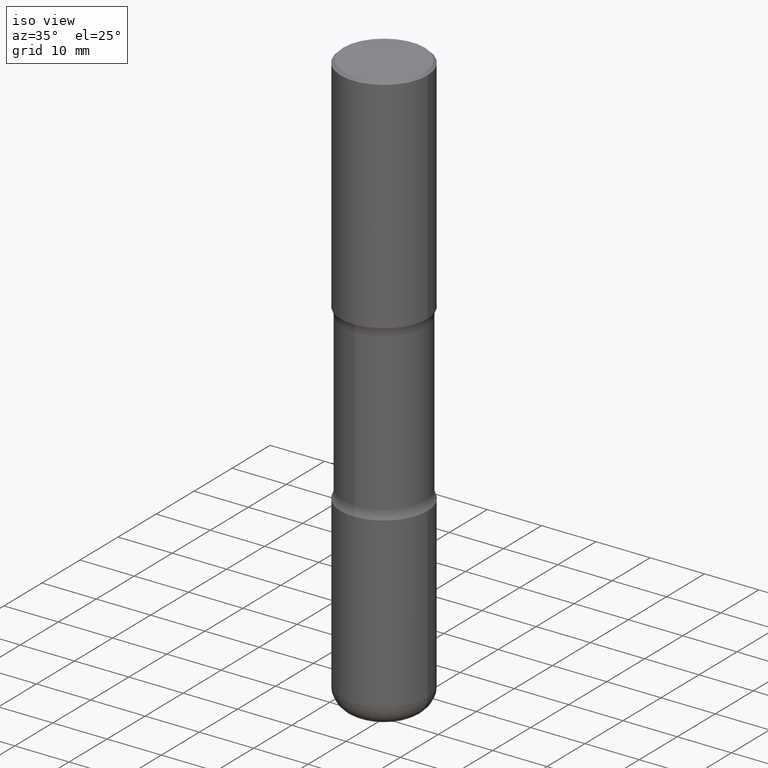
[diagram: clean part render]
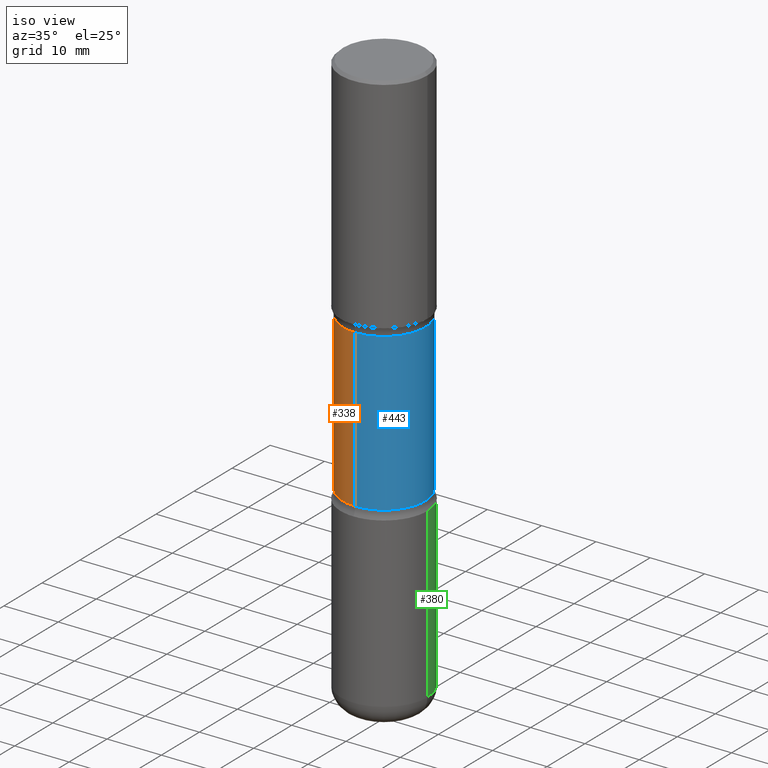
[diagram: same view with three faces highlighted in distinct colors, each labeled with its STEP entity id]
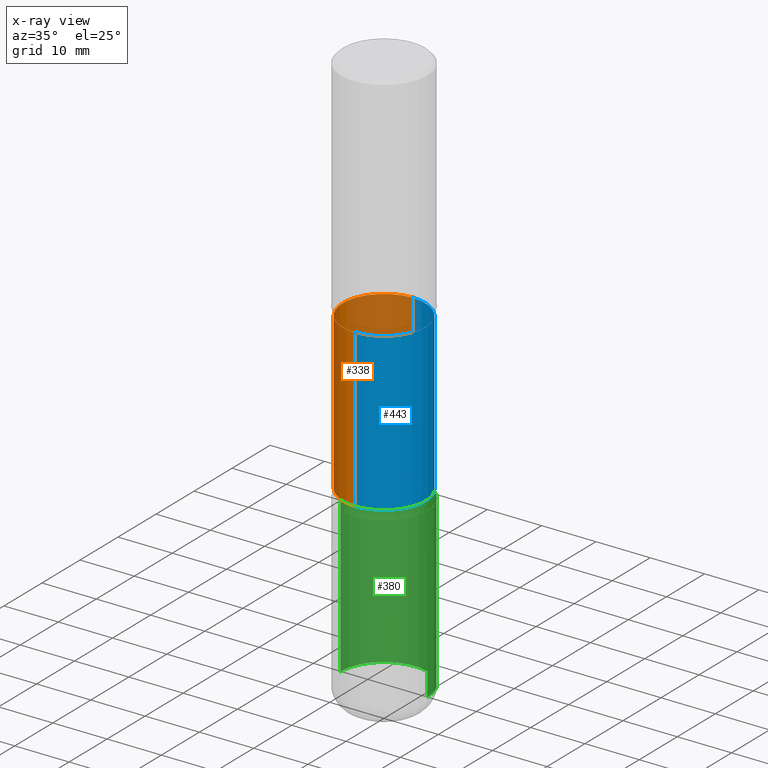
[diagram: x-ray of the same camera — body ghosted, the three highlighted faces saturated]
A machine part, iso view with three faces highlighted in distinct colors.
The next image is the same camera in x-ray (body ghosted, the three faces saturated) — at least one of them is partly hidden behind the body in this view.
Their STEP definitions:

[orange] entity #338 — the highlighted cylindrical surface (partial cylindrical patch) has radius 7.5946 mm, axis along (0, -0, -1).
#24 = AXIS2_PLACEMENT_3D ( 'NONE', #92, #141, #363 ) ;
#28 = DIRECTION ( 'NONE',  ( 6.982962677686266711E-15, 1.000000000000000000, -3.654646145370251312E-15 ) ) ;
#43 = CYLINDRICAL_SURFACE ( 'NONE', #24, 0.2989999999999999880 ) ;
#55 = EDGE_CURVE ( 'NONE', #318, #377, #481, .T. ) ;
#68 = CARTESIAN_POINT ( 'NONE',  ( 2.087905840628298129E-15, 0.2989999999999852220, -4.252000000000001556 ) ) ;
#75 = CARTESIAN_POINT ( 'NONE',  ( 2.087905840628262630E-15, 0.2989999999999902180, -2.812900920628869095 ) ) ;
#85 = EDGE_CURVE ( 'NONE', #318, #387, #148, .T. ) ;
#92 = CARTESIAN_POINT ( 'NONE',  ( 1.044582434535137653E-28, -1.477748245291944959E-14, -4.252000000000000668 ) ) ;
#94 = DIRECTION ( 'NONE',  ( 2.480077646135916176E-29, -3.441919510220789364E-15, -1.000000000000000000 ) ) ;
#128 = AXIS2_PLACEMENT_3D ( 'NONE', #359, #518, #28 ) ;
#141 = DIRECTION ( 'NONE',  ( 2.480077646135916176E-29, -3.441919510220789364E-15, -1.000000000000000000 ) ) ;
#148 = LINE ( 'NONE', #156, #392 ) ;
#156 = CARTESIAN_POINT ( 'NONE',  ( -2.051288901333583214E-15, -0.2990000000000148095, -4.251999999999999780 ) ) ;
#250 = AXIS2_PLACEMENT_3D ( 'NONE', #394, #94, #479 ) ;
#262 = CARTESIAN_POINT ( 'NONE',  ( -2.106001372865877291E-15, -0.2990000000000058722, -1.675299079371133315 ) ) ;
#279 = VERTEX_POINT ( 'NONE', #75 ) ;
#289 = LINE ( 'NONE', #68, #514 ) ;
#296 = ORIENTED_EDGE ( 'NONE', *, *, #85, .F. ) ;
#302 = ORIENTED_EDGE ( 'NONE', *, *, #371, .F. ) ;
#318 = VERTEX_POINT ( 'NONE', #262 ) ;
#333 = ORIENTED_EDGE ( 'NONE', *, *, #540, .T. ) ;
#338 = ADVANCED_FACE ( 'NONE', ( #433 ), #43, .T. ) ;
#344 = CARTESIAN_POINT ( 'NONE',  ( -2.106001372865846525E-15, -0.2990000000000098690, -2.812900920628866874 ) ) ;
#359 = CARTESIAN_POINT ( 'NONE',  ( 6.876746888028252201E-29, -9.824219254491173135E-15, -2.812900920628867762 ) ) ;
#363 = DIRECTION ( 'NONE',  ( 6.982962677686266711E-15, 1.000000000000000000, -3.654646145370252101E-15 ) ) ;
#364 = EDGE_LOOP ( 'NONE', ( #296, #375, #333, #302 ) ) ;
#371 = EDGE_CURVE ( 'NONE', #387, #279, #416, .T. ) ;
#375 = ORIENTED_EDGE ( 'NONE', *, *, #55, .T. ) ;
#377 = VERTEX_POINT ( 'NONE', #548 ) ;
#387 = VERTEX_POINT ( 'NONE', #344 ) ;
#392 = VECTOR ( 'NONE', #449, 39.37007874015748143 ) ;
#394 = CARTESIAN_POINT ( 'NONE',  ( 4.055405991321890096E-29, -5.908685282203086004E-15, -1.675299079371134425 ) ) ;
#416 = CIRCLE ( 'NONE', #128, 0.2990000000000000435 ) ;
#433 = FACE_OUTER_BOUND ( 'NONE', #364, .T. ) ;
#449 = DIRECTION ( 'NONE',  ( 2.480077646135916176E-29, -3.441919510220789364E-15, -1.000000000000000000 ) ) ;
#479 = DIRECTION ( 'NONE',  ( 6.982962677686266711E-15, 1.000000000000000000, -3.654646145370252890E-15 ) ) ;
#481 = CIRCLE ( 'NONE', #250, 0.2989999999999999325 ) ;
#514 = VECTOR ( 'NONE', #534, 39.37007874015748143 ) ;
#518 = DIRECTION ( 'NONE',  ( 2.480077646135916176E-29, -3.441919510220789364E-15, -1.000000000000000000 ) ) ;
#534 = DIRECTION ( 'NONE',  ( 2.480077646135916176E-29, -3.441919510220789364E-15, -1.000000000000000000 ) ) ;
#540 = EDGE_CURVE ( 'NONE', #377, #279, #289, .T. ) ;
#548 = CARTESIAN_POINT ( 'NONE',  ( 2.087905840628233836E-15, 0.2989999999999940483, -1.675299079371135536 ) ) ;

[blue] entity #443 — the highlighted cylindrical surface (partial cylindrical patch) has radius 7.5946 mm, axis along (0, -0, -1).
#8 = ORIENTED_EDGE ( 'NONE', *, *, #85, .T. ) ;
#13 = CIRCLE ( 'NONE', #350, 0.2990000000000000435 ) ;
#41 = DIRECTION ( 'NONE',  ( 6.982962677686266711E-15, 1.000000000000000000, -3.654646145370252101E-15 ) ) ;
#68 = CARTESIAN_POINT ( 'NONE',  ( 2.087905840628298129E-15, 0.2989999999999852220, -4.252000000000001556 ) ) ;
#75 = CARTESIAN_POINT ( 'NONE',  ( 2.087905840628262630E-15, 0.2989999999999902180, -2.812900920628869095 ) ) ;
#85 = EDGE_CURVE ( 'NONE', #318, #387, #148, .T. ) ;
#91 = CYLINDRICAL_SURFACE ( 'NONE', #470, 0.2989999999999999880 ) ;
#93 = ORIENTED_EDGE ( 'NONE', *, *, #347, .F. ) ;
#126 = ORIENTED_EDGE ( 'NONE', *, *, #268, .T. ) ;
#132 = FACE_OUTER_BOUND ( 'NONE', #330, .T. ) ;
#148 = LINE ( 'NONE', #156, #392 ) ;
#156 = CARTESIAN_POINT ( 'NONE',  ( -2.051288901333583214E-15, -0.2990000000000148095, -4.251999999999999780 ) ) ;
#171 = CARTESIAN_POINT ( 'NONE',  ( 4.055405991321890096E-29, -5.908685282203086004E-15, -1.675299079371134425 ) ) ;
#184 = DIRECTION ( 'NONE',  ( 2.480077646135916176E-29, -3.441919510220789364E-15, -1.000000000000000000 ) ) ;
#262 = CARTESIAN_POINT ( 'NONE',  ( -2.106001372865877291E-15, -0.2990000000000058722, -1.675299079371133315 ) ) ;
#268 = EDGE_CURVE ( 'NONE', #377, #318, #445, .T. ) ;
#269 = CARTESIAN_POINT ( 'NONE',  ( 1.044582434535137653E-28, -1.477748245291944959E-14, -4.252000000000000668 ) ) ;
#279 = VERTEX_POINT ( 'NONE', #75 ) ;
#289 = LINE ( 'NONE', #68, #514 ) ;
#318 = VERTEX_POINT ( 'NONE', #262 ) ;
#330 = EDGE_LOOP ( 'NONE', ( #126, #8, #93, #430 ) ) ;
#344 = CARTESIAN_POINT ( 'NONE',  ( -2.106001372865846525E-15, -0.2990000000000098690, -2.812900920628866874 ) ) ;
#347 = EDGE_CURVE ( 'NONE', #279, #387, #13, .T. ) ;
#350 = AXIS2_PLACEMENT_3D ( 'NONE', #437, #184, #482 ) ;
#377 = VERTEX_POINT ( 'NONE', #548 ) ;
#387 = VERTEX_POINT ( 'NONE', #344 ) ;
#392 = VECTOR ( 'NONE', #449, 39.37007874015748143 ) ;
#413 = DIRECTION ( 'NONE',  ( 2.480077646135916176E-29, -3.441919510220789364E-15, -1.000000000000000000 ) ) ;
#430 = ORIENTED_EDGE ( 'NONE', *, *, #540, .F. ) ;
#436 = DIRECTION ( 'NONE',  ( 2.480077646135916176E-29, -3.441919510220789364E-15, -1.000000000000000000 ) ) ;
#437 = CARTESIAN_POINT ( 'NONE',  ( 6.876746888028252201E-29, -9.824219254491173135E-15, -2.812900920628867762 ) ) ;
#443 = ADVANCED_FACE ( 'NONE', ( #132 ), #91, .T. ) ;
#445 = CIRCLE ( 'NONE', #552, 0.2989999999999999325 ) ;
#449 = DIRECTION ( 'NONE',  ( 2.480077646135916176E-29, -3.441919510220789364E-15, -1.000000000000000000 ) ) ;
#459 = DIRECTION ( 'NONE',  ( 6.982962677686266711E-15, 1.000000000000000000, -3.654646145370252890E-15 ) ) ;
#470 = AXIS2_PLACEMENT_3D ( 'NONE', #269, #436, #41 ) ;
#482 = DIRECTION ( 'NONE',  ( 6.982962677686266711E-15, 1.000000000000000000, -3.654646145370251312E-15 ) ) ;
#514 = VECTOR ( 'NONE', #534, 39.37007874015748143 ) ;
#534 = DIRECTION ( 'NONE',  ( 2.480077646135916176E-29, -3.441919510220789364E-15, -1.000000000000000000 ) ) ;
#540 = EDGE_CURVE ( 'NONE', #377, #279, #289, .T. ) ;
#548 = CARTESIAN_POINT ( 'NONE',  ( 2.087905840628233836E-15, 0.2989999999999940483, -1.675299079371135536 ) ) ;
#552 = AXIS2_PLACEMENT_3D ( 'NONE', #171, #413, #459 ) ;

[green] entity #380 — the highlighted cylindrical surface (partial cylindrical patch) has radius 7.9997 mm, axis along (-0, 0, 1).
#19 = EDGE_LOOP ( 'NONE', ( #395, #101, #223, #477 ) ) ;
#20 = VERTEX_POINT ( 'NONE', #487 ) ;
#21 = EDGE_CURVE ( 'NONE', #20, #174, #182, .T. ) ;
#57 = DIRECTION ( 'NONE',  ( -2.445468806185136877E-29, 3.491481338843145188E-15, 1.000000000000000000 ) ) ;
#97 = VECTOR ( 'NONE', #57, 39.37007874015748143 ) ;
#100 = DIRECTION ( 'NONE',  ( -2.445468806185136597E-29, 3.491481338843145583E-15, 1.000000000000000000 ) ) ;
#101 = ORIENTED_EDGE ( 'NONE', *, *, #533, .T. ) ;
#110 = LINE ( 'NONE', #335, #97 ) ;
#146 = EDGE_CURVE ( 'NONE', #20, #538, #537, .T. ) ;
#169 = DIRECTION ( 'NONE',  ( -2.445468806185136597E-29, 3.491481338843145583E-15, 1.000000000000000000 ) ) ;
#174 = VERTEX_POINT ( 'NONE', #408 ) ;
#182 = CIRCLE ( 'NONE', #494, 0.3149500000000003408 ) ;
#208 = CARTESIAN_POINT ( 'NONE',  ( 0.000000000000000000, 0.000000000000000000, 0.000000000000000000 ) ) ;
#216 = EDGE_CURVE ( 'NONE', #538, #390, #504, .T. ) ;
#223 = ORIENTED_EDGE ( 'NONE', *, *, #216, .F. ) ;
#243 = CARTESIAN_POINT ( 'NONE',  ( 0.3149500000000002853, -2.199284095337291843E-15, 1.535751875536931531E-29 ) ) ;
#254 = DIRECTION ( 'NONE',  ( -2.445468806185136597E-29, 3.491481338843145583E-15, 1.000000000000000000 ) ) ;
#255 = FACE_OUTER_BOUND ( 'NONE', #19, .T. ) ;
#259 = CYLINDRICAL_SURFACE ( 'NONE', #527, 0.3149500000000002853 ) ;
#260 = VECTOR ( 'NONE', #332, 39.37007874015748143 ) ;
#306 = DIRECTION ( 'NONE',  ( 1.000000000000000000, -6.982962677686264344E-15, 0.000000000000000000 ) ) ;
#307 = CARTESIAN_POINT ( 'NONE',  ( -0.3149500000000002298, -9.928212378922505958E-15, -2.874000000000000554 ) ) ;
#309 = AXIS2_PLACEMENT_3D ( 'NONE', #457, #254, #306 ) ;
#324 = CARTESIAN_POINT ( 'NONE',  ( 0.3149500000000002298, -1.223380146317249313E-14, -2.874000000000000554 ) ) ;
#332 = DIRECTION ( 'NONE',  ( -2.445468806185136877E-29, 3.491481338843145188E-15, 1.000000000000000000 ) ) ;
#335 = CARTESIAN_POINT ( 'NONE',  ( -0.3149500000000002853, 2.237854346276437562E-15, -1.549218606675783797E-29 ) ) ;
#341 = DIRECTION ( 'NONE',  ( 1.000000000000000000, -6.982962677686267499E-15, 4.876176775795936353E-29 ) ) ;
#361 = CARTESIAN_POINT ( 'NONE',  ( 1.001419476132813495E-28, -1.429761608256268379E-14, -4.095000000000000639 ) ) ;
#380 = ADVANCED_FACE ( 'NONE', ( #255 ), #259, .T. ) ;
#390 = VERTEX_POINT ( 'NONE', #307 ) ;
#395 = ORIENTED_EDGE ( 'NONE', *, *, #21, .T. ) ;
#408 = CARTESIAN_POINT ( 'NONE',  ( -0.3149500000000002298, -1.205976173628624465E-14, -4.095000000000000639 ) ) ;
#457 = CARTESIAN_POINT ( 'NONE',  ( 7.028277348976083234E-29, -1.003451736783520325E-14, -2.874000000000000554 ) ) ;
#477 = ORIENTED_EDGE ( 'NONE', *, *, #146, .F. ) ;
#487 = CARTESIAN_POINT ( 'NONE',  ( 0.3149500000000002298, -1.649690017789997523E-14, -4.095000000000000639 ) ) ;
#494 = AXIS2_PLACEMENT_3D ( 'NONE', #361, #100, #522 ) ;
#504 = CIRCLE ( 'NONE', #309, 0.3149500000000002298 ) ;
#522 = DIRECTION ( 'NONE',  ( 1.000000000000000000, -6.982962677686268288E-15, 0.000000000000000000 ) ) ;
#527 = AXIS2_PLACEMENT_3D ( 'NONE', #208, #169, #341 ) ;
#533 = EDGE_CURVE ( 'NONE', #174, #390, #110, .T. ) ;
#537 = LINE ( 'NONE', #243, #260 ) ;
#538 = VERTEX_POINT ( 'NONE', #324 ) ;